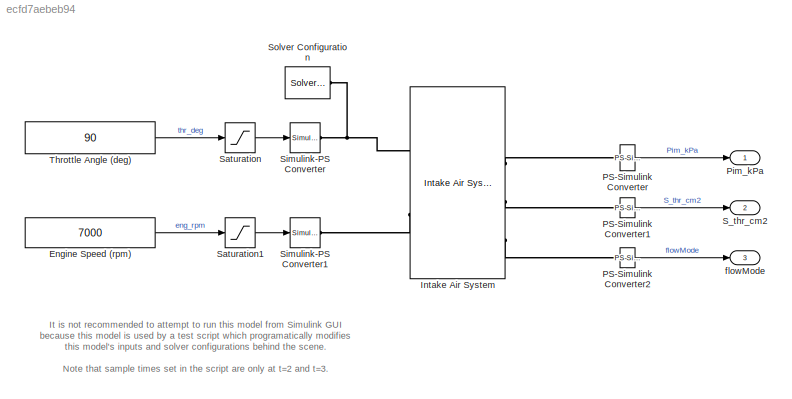
MODEL slx_ecfd7aebeb94
KIND model
CONFIG AbsTol = auto
CONFIG EnableMultiTasking = off
CONFIG FixedStep = auto
CONFIG MaxStep = 0.1
CONFIG MinStep = auto
CONFIG RelTol = 1e-3
CONFIG SampleTimeConstraint = Unconstrained
CONFIG Solver = ode23t
CONFIG SolverName = ode23t
CONFIG StartTime = 0.0
CONFIG StopTime = 10
BLOCK [Constant] Engine Speed (rpm)
  Value = 7000
BLOCK [Reference] Intake Air System  REF=engine_lib/Intake Air System  (lib defined in slx_c4798424b846)
  Ports = [0, 0, 0, 0, 0, 2, 4]
  SourceBlock = engine_lib/Intake Air System
  SourceType = Intake Air System
BLOCK [Reference] PS-Simulink Converter  REF=nesl_utility/PS-Simulink
Converter
  AttributesFormatString = %<Unit>
  Ports = [0, 1, 0, 0, 0, 1]
  SourceBlock = nesl_utility/PS-Simulink\nConverter
  SourceProductBaseCode = SS
  SourceType = PS-Simulink\nConverter
BLOCK [Reference] PS-Simulink Converter1  REF=nesl_utility/PS-Simulink
Converter
  AttributesFormatString = %<Unit>
  Ports = [0, 1, 0, 0, 0, 1]
  SourceBlock = nesl_utility/PS-Simulink\nConverter
  SourceProductBaseCode = SS
  SourceType = PS-Simulink\nConverter
BLOCK [Reference] PS-Simulink Converter2  REF=nesl_utility/PS-Simulink
Converter
  AttributesFormatString = %<Unit>
  Ports = [0, 1, 0, 0, 0, 1]
  SourceBlock = nesl_utility/PS-Simulink\nConverter
  SourceProductBaseCode = SS
  SourceType = PS-Simulink\nConverter
BLOCK [Outport] Pim_kPa
  VectorParamsAs1DForOutWhenUnconnected = off
BLOCK [Outport] S_thr_cm2
  Port = 2
  VectorParamsAs1DForOutWhenUnconnected = off
BLOCK [Saturate] Saturation
  AttributesFormatString = Upper %<UpperLimit>\nLower %<LowerLimit>
  LowerLimit = 0
  UpperLimit = 90
BLOCK [Saturate] Saturation1
  AttributesFormatString = Upper %<UpperLimit>\nLower %<LowerLimit>
  LowerLimit = 0
  UpperLimit = 8000
BLOCK [Reference] Simulink-PS Converter  REF=nesl_utility/Simulink-PS
Converter
  AttributesFormatString = %<Unit>
  Ports = [1, 0, 0, 0, 0, 0, 1]
  SourceBlock = nesl_utility/Simulink-PS\nConverter
  SourceProductBaseCode = SS
  SourceType = Simulink-PS\nConverter
BLOCK [Reference] Simulink-PS Converter1  REF=nesl_utility/Simulink-PS
Converter
  AttributesFormatString = %<Unit>
  Ports = [1, 0, 0, 0, 0, 0, 1]
  SourceBlock = nesl_utility/Simulink-PS\nConverter
  SourceProductBaseCode = SS
  SourceType = Simulink-PS\nConverter
BLOCK [Reference] Solver Configuration  REF=nesl_utility/Solver
Configuration
  AttributesFormatString = Local solver %<UseLocalSolver>
  NameLocation = top
  Ports = [0, 0, 0, 0, 0, 0, 1]
  SourceBlock = nesl_utility/Solver\nConfiguration
  SourceProductBaseCode = SS
  SourceType = Solver\nConfiguration
BLOCK [Constant] Throttle Angle (deg)
  Value = 90
BLOCK [Outport] flowMode
  Port = 3
  VectorParamsAs1DForOutWhenUnconnected = off
ANNOTATION (root): It is not recommended to attempt to run this model from Simulink GUI because this model is used by a test script which programatically modifies this model's inputs and solver configurations behind the scene. Note that sample times set in the script are only at t=2 and t=3.
LINE Engine Speed (rpm):1 -> Saturation1:1
LINE PS-Simulink Converter1:1 -> S_thr_cm2:1
LINE PS-Simulink Converter2:1 -> flowMode:1
LINE PS-Simulink Converter:1 -> Pim_kPa:1
LINE Saturation1:1 -> Simulink-PS Converter1:1
LINE Saturation:1 -> Simulink-PS Converter:1
LINE Throttle Angle (deg):1 -> Saturation:1
PNET net1: Intake Air System:LConn1 -- Simulink-PS Converter:RConn1 -- Solver Configuration:RConn1
PLINE Intake Air System:LConn2 -- Simulink-PS Converter1:RConn1
PLINE Intake Air System:RConn2 -- PS-Simulink Converter:LConn1
PLINE Intake Air System:RConn3 -- PS-Simulink Converter1:LConn1
PLINE Intake Air System:RConn4 -- PS-Simulink Converter2:LConn1
note: PNET lines group multi-terminal physical nets as a canonical sorted terminal list (undirected conserving connections); 2-terminal nets keep the pairwise PLINE form
